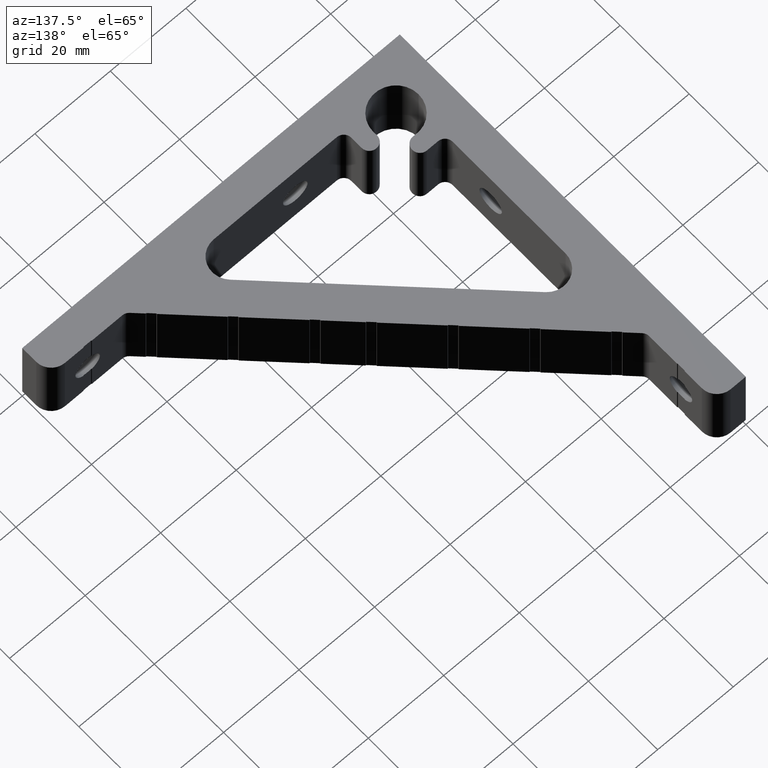
[diagram: clean part render]
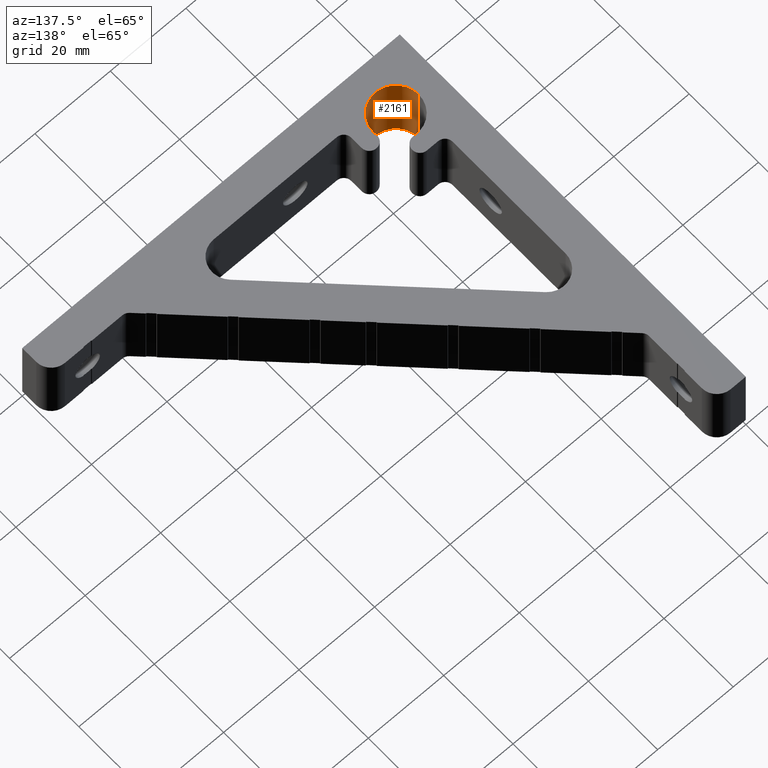
[diagram: same view with one face highlighted and labeled with its STEP entity id]
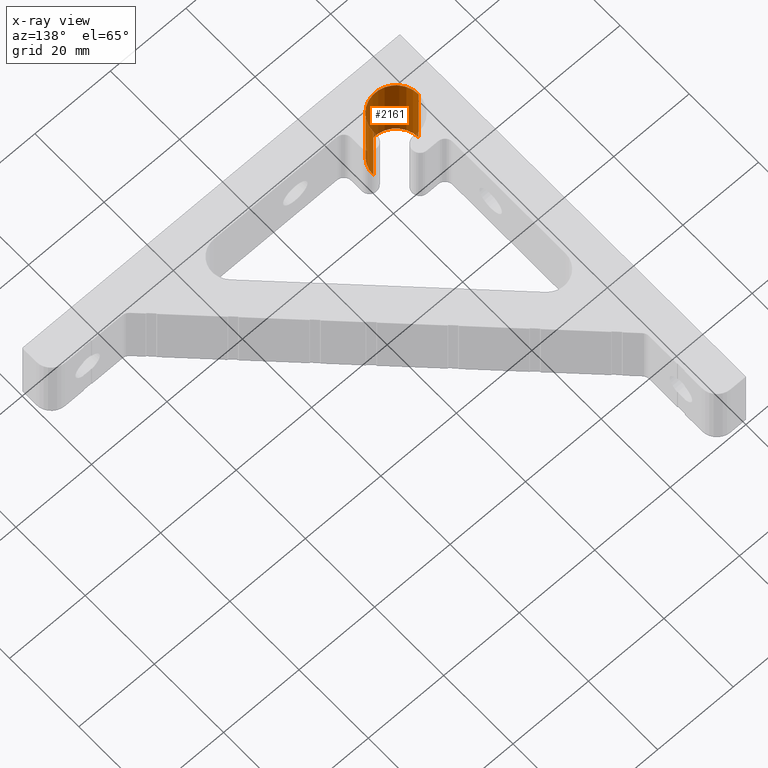
[diagram: x-ray of the same camera — body ghosted, the highlighted face saturated]
A machine part, auxiliary view. The second image highlights one B-rep face of the part: STEP entity #2161.
The next image is the same camera in x-ray: the body ghosted, the highlighted face saturated — about 2% of this face is hidden behind the body in this view.
In plain terms, the highlighted cylindrical surface (edge-blend (fillet) strip) has radius 6 mm, axis along (-0, -0, -1).
Its self-contained STEP definition (entity closure, byte-faithful):
#39 = CARTESIAN_POINT ( 'NONE',  ( 6.000000000000000000, 11.99999999999999800, 20.00000000000000000 ) ) ;
#40 = DIRECTION ( 'NONE',  ( -0.0000000000000000000, -0.0000000000000000000, -1.000000000000000000 ) ) ;
#48 = CARTESIAN_POINT ( 'NONE',  ( 12.00000000000000000, 11.99999999999999800, 20.00000000000000000 ) ) ;
#49 = DIRECTION ( 'NONE',  ( 0.0000000000000000000, 0.0000000000000000000, 1.000000000000000000 ) ) ;
#50 = DIRECTION ( 'NONE',  ( 1.000000000000000000, 0.0000000000000000000, 0.0000000000000000000 ) ) ;
#452 = LINE ( 'NONE', #1637, #453 ) ;
#453 = VECTOR ( 'NONE', #1626, 1000.000000000000000 ) ;
#658 = AXIS2_PLACEMENT_3D ( 'NONE', #1414, #1415, #1422 ) ;
#888 = CIRCLE ( 'NONE', #658, 6.000000000000001800 ) ;
#925 = FACE_OUTER_BOUND ( 'NONE', #2702, .T. ) ;
#926 = CYLINDRICAL_SURFACE ( 'NONE', #1841, 6.000000000000000000 ) ;
#1017 = VERTEX_POINT ( 'NONE', #1240 ) ;
#1051 = VERTEX_POINT ( 'NONE', #1222 ) ;
#1222 = CARTESIAN_POINT ( 'NONE',  ( 18.00000000000000400, 11.99999999999999800, 0.0000000000000000000 ) ) ;
#1240 = CARTESIAN_POINT ( 'NONE',  ( 18.00000000000000400, 11.99999999999999800, 20.00000000000000000 ) ) ;
#1414 = CARTESIAN_POINT ( 'NONE',  ( 12.00000000000000000, 11.99999999999999800, 0.0000000000000000000 ) ) ;
#1415 = DIRECTION ( 'NONE',  ( 0.0000000000000000000, 0.0000000000000000000, 1.000000000000000000 ) ) ;
#1422 = DIRECTION ( 'NONE',  ( 1.000000000000000000, 0.0000000000000000000, 0.0000000000000000000 ) ) ;
#1440 = CARTESIAN_POINT ( 'NONE',  ( 6.000000000000000000, 11.99999999999999800, 20.00000000000000000 ) ) ;
#1441 = DIRECTION ( 'NONE',  ( -1.000000000000000000, 0.0000000000000000000, 0.0000000000000000000 ) ) ;
#1471 = CARTESIAN_POINT ( 'NONE',  ( 6.000000000000000000, 11.99999999999999800, 0.0000000000000000000 ) ) ;
#1520 = CARTESIAN_POINT ( 'NONE',  ( 12.00000000000000000, 11.99999999999999800, 20.00000000000000000 ) ) ;
#1545 = DIRECTION ( 'NONE',  ( -0.0000000000000000000, -0.0000000000000000000, -1.000000000000000000 ) ) ;
#1626 = DIRECTION ( 'NONE',  ( -0.0000000000000000000, -0.0000000000000000000, -1.000000000000000000 ) ) ;
#1637 = CARTESIAN_POINT ( 'NONE',  ( 18.00000000000000400, 11.99999999999999800, 20.00000000000000000 ) ) ;
#1841 = AXIS2_PLACEMENT_3D ( 'NONE', #1520, #1545, #1441 ) ;
#1988 = AXIS2_PLACEMENT_3D ( 'NONE', #48, #49, #50 ) ;
#2016 = EDGE_CURVE ( 'NONE', #1017, #1051, #452, .T. ) ;
#2031 = EDGE_CURVE ( 'NONE', #2421, #1051, #888, .T. ) ;
#2161 = ADVANCED_FACE ( 'NONE', ( #925 ), #926, .F. ) ;
#2211 = LINE ( 'NONE', #39, #2213 ) ;
#2213 = VECTOR ( 'NONE', #40, 1000.000000000000000 ) ;
#2220 = CIRCLE ( 'NONE', #1988, 6.000000000000001800 ) ;
#2421 = VERTEX_POINT ( 'NONE', #1471 ) ;
#2423 = VERTEX_POINT ( 'NONE', #1440 ) ;
#2478 = ORIENTED_EDGE ( 'NONE', *, *, #2600, .T. ) ;
#2479 = ORIENTED_EDGE ( 'NONE', *, *, #2016, .T. ) ;
#2480 = ORIENTED_EDGE ( 'NONE', *, *, #2031, .F. ) ;
#2481 = ORIENTED_EDGE ( 'NONE', *, *, #2596, .F. ) ;
#2596 = EDGE_CURVE ( 'NONE', #2423, #2421, #2211, .T. ) ;
#2600 = EDGE_CURVE ( 'NONE', #2423, #1017, #2220, .T. ) ;
#2702 = EDGE_LOOP ( 'NONE', ( #2478, #2479, #2480, #2481 ) ) ;